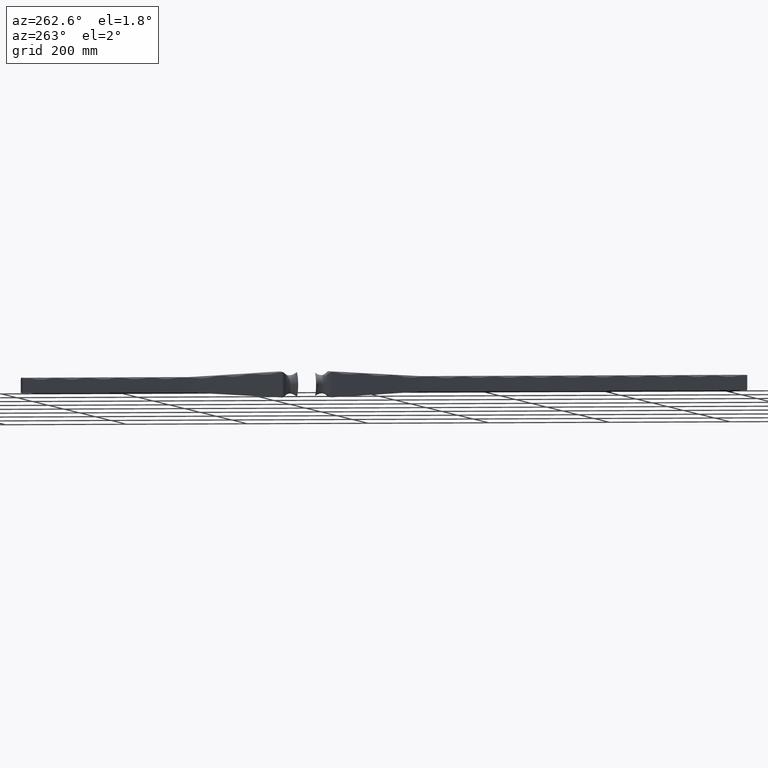
[diagram: clean part render]
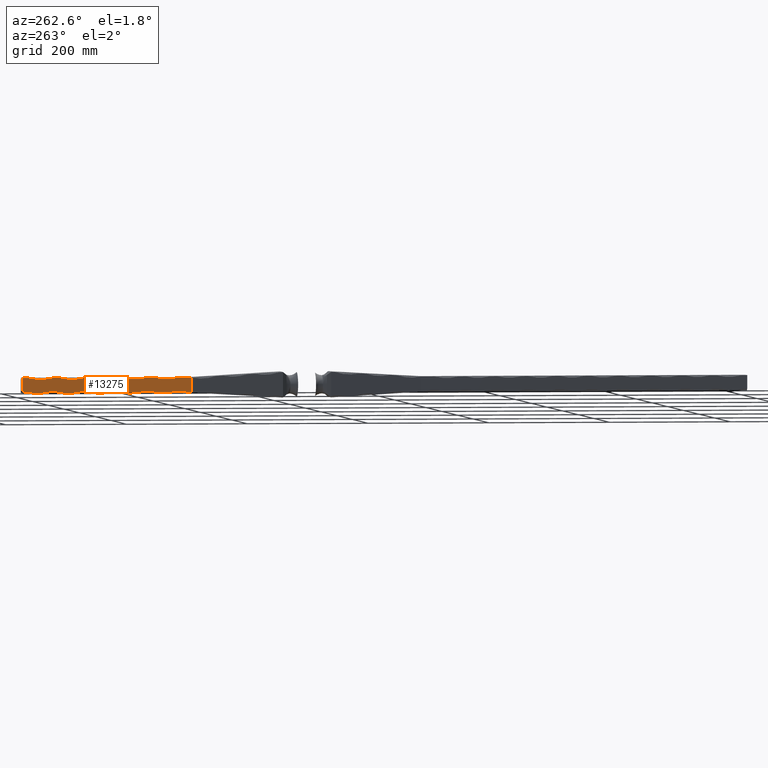
[diagram: same view with one face highlighted and labeled with its STEP entity id]
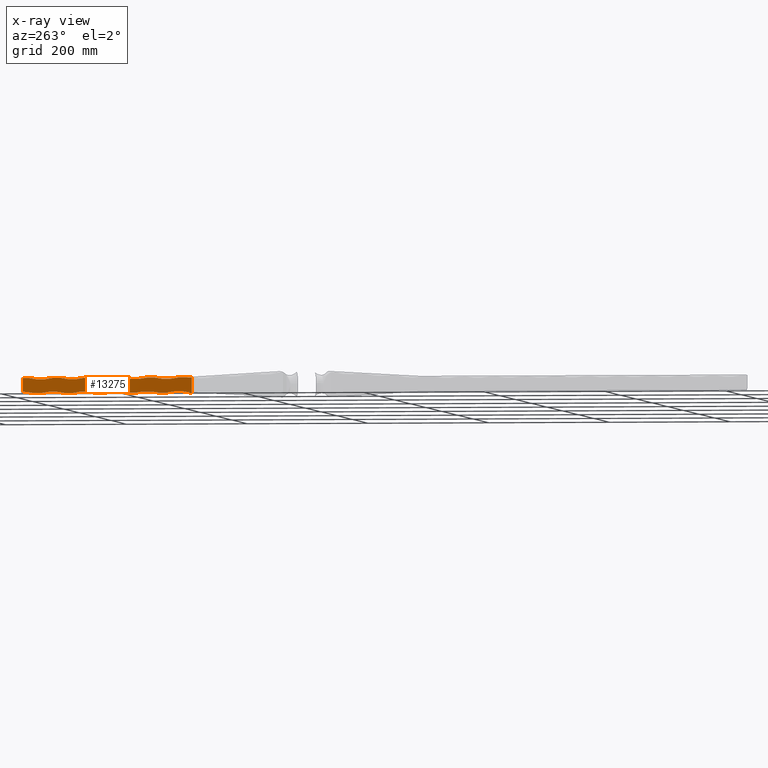
[diagram: x-ray of the same camera — body ghosted, the highlighted face saturated]
A machine part, auxiliary view. The second image highlights one B-rep face of the part: STEP entity #13275.
The next image is the same camera in x-ray: the body ghosted, the highlighted face saturated — about 0% of this face is hidden behind the body in this view.
In plain terms, the highlighted planar face has unit normal (1, 0, 0).
Its self-contained STEP definition (entity closure, byte-faithful):
#80 = FACE_OUTER_BOUND ( 'NONE', #10313, .T. ) ;
#135 = VERTEX_POINT ( 'NONE', #4320 ) ;
#160 = VECTOR ( 'NONE', #4542, 1000.000000000000000 ) ;
#176 = DIRECTION ( 'NONE',  ( 1.000000000000000000, 0.000000000000000000, 0.000000000000000000 ) ) ;
#219 = VECTOR ( 'NONE', #10010, 1000.000000000000000 ) ;
#274 = EDGE_CURVE ( 'NONE', #2638, #14939, #1200, .T. ) ;
#305 = DIRECTION ( 'NONE',  ( 1.000000000000000000, 0.000000000000000000, 0.000000000000000000 ) ) ;
#345 = DIRECTION ( 'NONE',  ( 0.000000000000000000, 0.000000000000000000, -1.000000000000000000 ) ) ;
#471 = VERTEX_POINT ( 'NONE', #15332 ) ;
#490 = VERTEX_POINT ( 'NONE', #1919 ) ;
#511 = CARTESIAN_POINT ( 'NONE',  ( -12.50000000000000000, 975.3553390593272070, -12.50000000000000000 ) ) ;
#532 = LINE ( 'NONE', #2171, #15808 ) ;
#538 = CARTESIAN_POINT ( 'NONE',  ( -12.50000000000000000, 190.0000000000000000, 12.50000000000000000 ) ) ;
#559 = AXIS2_PLACEMENT_3D ( 'NONE', #1388, #9831, #5030 ) ;
#607 = AXIS2_PLACEMENT_3D ( 'NONE', #8899, #176, #13803 ) ;
#659 = AXIS2_PLACEMENT_3D ( 'NONE', #14046, #9537, #4471 ) ;
#1067 = VERTEX_POINT ( 'NONE', #11756 ) ;
#1200 = LINE ( 'NONE', #14755, #219 ) ;
#1262 = ORIENTED_EDGE ( 'NONE', *, *, #10854, .F. ) ;
#1318 = VERTEX_POINT ( 'NONE', #13002 ) ;
#1354 = CIRCLE ( 'NONE', #659, 81.25000000000004263 ) ;
#1386 = VECTOR ( 'NONE', #14884, 1000.000000000000000 ) ;
#1388 = CARTESIAN_POINT ( 'NONE',  ( -12.49999999999991829, 439.9999999999999432, 91.24999999999990052 ) ) ;
#1514 = VECTOR ( 'NONE', #14029, 1000.000000000000000 ) ;
#1864 = DIRECTION ( 'NONE',  ( -1.000000000000000000, -0.000000000000000000, -0.000000000000000000 ) ) ;
#1917 = VERTEX_POINT ( 'NONE', #12023 ) ;
#1919 = CARTESIAN_POINT ( 'NONE',  ( -12.49999999999999289, 231.9999999999999716, -12.50000000000014033 ) ) ;
#1983 = CIRCLE ( 'NONE', #559, 81.24999999999998579 ) ;
#1985 = AXIS2_PLACEMENT_3D ( 'NONE', #9649, #7209, #7105 ) ;
#2092 = DIRECTION ( 'NONE',  ( -1.000000000000000000, -0.000000000000000000, -0.000000000000000000 ) ) ;
#2114 = ORIENTED_EDGE ( 'NONE', *, *, #9838, .T. ) ;
#2171 = CARTESIAN_POINT ( 'NONE',  ( -12.50000000000000000, 975.3553390593272070, 12.50000000000000000 ) ) ;
#2219 = EDGE_CURVE ( 'NONE', #10777, #6112, #14706, .T. ) ;
#2293 = CARTESIAN_POINT ( 'NONE',  ( -12.49999999999999289, 451.9999999999999432, -12.50000000000006750 ) ) ;
#2389 = CARTESIAN_POINT ( 'NONE',  ( -12.49999999999999289, 439.9999999999999432, -12.50000000000007994 ) ) ;
#2428 = VERTEX_POINT ( 'NONE', #13001 ) ;
#2483 = LINE ( 'NONE', #16012, #8666 ) ;
#2638 = VERTEX_POINT ( 'NONE', #3875 ) ;
#2718 = DIRECTION ( 'NONE',  ( 1.000000000000000000, 0.000000000000000000, 0.000000000000000000 ) ) ;
#2730 = EDGE_CURVE ( 'NONE', #1318, #490, #8149, .T. ) ;
#2756 = DIRECTION ( 'NONE',  ( -0.000000000000000000, -1.000000000000000000, -0.000000000000000000 ) ) ;
#2852 = VERTEX_POINT ( 'NONE', #5341 ) ;
#2872 = ORIENTED_EDGE ( 'NONE', *, *, #15866, .T. ) ;
#3002 = ORIENTED_EDGE ( 'NONE', *, *, #13475, .T. ) ;
#3090 = DIRECTION ( 'NONE',  ( 0.000000000000000000, 0.000000000000000000, -1.000000000000000000 ) ) ;
#3154 = AXIS2_PLACEMENT_3D ( 'NONE', #6868, #10545, #11614 ) ;
#3514 = LINE ( 'NONE', #11449, #4080 ) ;
#3531 = DIRECTION ( 'NONE',  ( -0.000000000000000000, -1.000000000000000000, -0.000000000000000000 ) ) ;
#3751 = VERTEX_POINT ( 'NONE', #9782 ) ;
#3856 = LINE ( 'NONE', #6268, #9291 ) ;
#3875 = CARTESIAN_POINT ( 'NONE',  ( -12.49999999999999645, 368.0000000000002842, 12.49999999999991651 ) ) ;
#3898 = DIRECTION ( 'NONE',  ( -0.000000000000000000, -1.000000000000000000, -0.000000000000000000 ) ) ;
#4080 = VECTOR ( 'NONE', #3898, 1000.000000000000000 ) ;
#4163 = VECTOR ( 'NONE', #7788, 1000.000000000000000 ) ;
#4280 = VECTOR ( 'NONE', #15256, 1000.000000000000000 ) ;
#4320 = CARTESIAN_POINT ( 'NONE',  ( -12.49999999999999289, 347.9999999999995453, -12.49999999999999645 ) ) ;
#4398 = VECTOR ( 'NONE', #6594, 1000.000000000000000 ) ;
#4430 = AXIS2_PLACEMENT_3D ( 'NONE', #11426, #12511, #345 ) ;
#4471 = DIRECTION ( 'NONE',  ( 0.000000000000000000, 0.000000000000000000, -1.000000000000000000 ) ) ;
#4474 = LINE ( 'NONE', #14118, #160 ) ;
#4526 = ORIENTED_EDGE ( 'NONE', *, *, #8456, .T. ) ;
#4542 = DIRECTION ( 'NONE',  ( -0.000000000000000000, -1.000000000000000000, -0.000000000000000000 ) ) ;
#4722 = CIRCLE ( 'NONE', #3154, 81.24999999999998579 ) ;
#4760 = VERTEX_POINT ( 'NONE', #12324 ) ;
#4791 = LINE ( 'NONE', #538, #4398 ) ;
#4985 = CARTESIAN_POINT ( 'NONE',  ( -12.50000000000000000, 975.3553390593272070, -12.50000000000000000 ) ) ;
#5030 = DIRECTION ( 'NONE',  ( 0.000000000000000000, -1.093142670400154351E-14, -1.000000000000000000 ) ) ;
#5259 = CARTESIAN_POINT ( 'NONE',  ( -12.49999999999999289, 211.9999999999999716, -91.25000000000019895 ) ) ;
#5268 = ORIENTED_EDGE ( 'NONE', *, *, #7612, .T. ) ;
#5283 = EDGE_CURVE ( 'NONE', #7403, #11681, #12614, .T. ) ;
#5288 = ORIENTED_EDGE ( 'NONE', *, *, #2219, .F. ) ;
#5327 = AXIS2_PLACEMENT_3D ( 'NONE', #15627, #2092, #6948 ) ;
#5341 = CARTESIAN_POINT ( 'NONE',  ( -12.49999999999999289, 295.9999999999994884, -12.49999999999999645 ) ) ;
#5368 = ORIENTED_EDGE ( 'NONE', *, *, #274, .F. ) ;
#5517 = DIRECTION ( 'NONE',  ( 0.000000000000000000, 0.000000000000000000, -1.000000000000000000 ) ) ;
#5843 = CIRCLE ( 'NONE', #4430, 81.25000000000005684 ) ;
#5968 = EDGE_CURVE ( 'NONE', #14939, #6624, #6811, .T. ) ;
#6017 = CARTESIAN_POINT ( 'NONE',  ( -12.50000000000000000, 190.0000000000000000, -12.50000000000000000 ) ) ;
#6112 = VERTEX_POINT ( 'NONE', #8459 ) ;
#6268 = CARTESIAN_POINT ( 'NONE',  ( -12.50000000000000000, 975.3553390593272070, -12.50000000000000000 ) ) ;
#6338 = EDGE_CURVE ( 'NONE', #3751, #2638, #4722, .T. ) ;
#6361 = LINE ( 'NONE', #10938, #7536 ) ;
#6431 = ORIENTED_EDGE ( 'NONE', *, *, #5283, .T. ) ;
#6594 = DIRECTION ( 'NONE',  ( 0.000000000000000000, 0.000000000000000000, -1.000000000000000000 ) ) ;
#6624 = VERTEX_POINT ( 'NONE', #9970 ) ;
#6811 = CIRCLE ( 'NONE', #5327, 81.24999999999998579 ) ;
#6868 = CARTESIAN_POINT ( 'NONE',  ( -12.49999999999990408, 387.9999999999999432, 91.24999999999988631 ) ) ;
#6913 = CARTESIAN_POINT ( 'NONE',  ( -12.49999999999999289, 387.9999999999999432, -12.50000000000009592 ) ) ;
#6948 = DIRECTION ( 'NONE',  ( 0.000000000000000000, 0.000000000000000000, -1.000000000000000000 ) ) ;
#7105 = DIRECTION ( 'NONE',  ( 0.000000000000000000, 0.000000000000000000, -1.000000000000000000 ) ) ;
#7153 = EDGE_CURVE ( 'NONE', #6624, #13024, #3514, .T. ) ;
#7174 = EDGE_CURVE ( 'NONE', #490, #7900, #14705, .T. ) ;
#7209 = DIRECTION ( 'NONE',  ( 1.000000000000000000, 0.000000000000000000, 0.000000000000000000 ) ) ;
#7263 = EDGE_CURVE ( 'NONE', #1917, #2852, #1354, .T. ) ;
#7403 = VERTEX_POINT ( 'NONE', #2293 ) ;
#7432 = LINE ( 'NONE', #4985, #4163 ) ;
#7500 = DIRECTION ( 'NONE',  ( -0.000000000000000000, -1.000000000000000000, -0.000000000000000000 ) ) ;
#7533 = CARTESIAN_POINT ( 'NONE',  ( -12.49999999999999289, 263.9999999999999432, -91.25000000000018474 ) ) ;
#7536 = VECTOR ( 'NONE', #3531, 1000.000000000000000 ) ;
#7580 = EDGE_CURVE ( 'NONE', #9567, #10777, #11825, .T. ) ;
#7589 = EDGE_CURVE ( 'NONE', #8495, #9684, #1983, .T. ) ;
#7612 = EDGE_CURVE ( 'NONE', #8010, #135, #5843, .T. ) ;
#7763 = CARTESIAN_POINT ( 'NONE',  ( -12.49999999999999645, 264.0000000000003979, 12.49999999999988631 ) ) ;
#7788 = DIRECTION ( 'NONE',  ( -0.000000000000000000, -1.000000000000000000, -0.000000000000000000 ) ) ;
#7816 = ORIENTED_EDGE ( 'NONE', *, *, #11841, .F. ) ;
#7900 = VERTEX_POINT ( 'NONE', #11714 ) ;
#8010 = VERTEX_POINT ( 'NONE', #6913 ) ;
#8070 = CARTESIAN_POINT ( 'NONE',  ( -12.49999999999987388, 284.0000000000000000, 91.24999999999985789 ) ) ;
#8109 = ORIENTED_EDGE ( 'NONE', *, *, #13982, .T. ) ;
#8149 = LINE ( 'NONE', #511, #4280 ) ;
#8250 = CARTESIAN_POINT ( 'NONE',  ( -12.49999999999992184, 459.9999999999999432, 12.49999999999993072 ) ) ;
#8354 = AXIS2_PLACEMENT_3D ( 'NONE', #5259, #305, #8766 ) ;
#8357 = EDGE_CURVE ( 'NONE', #471, #8495, #4474, .T. ) ;
#8456 = EDGE_CURVE ( 'NONE', #7900, #15634, #6361, .T. ) ;
#8459 = CARTESIAN_POINT ( 'NONE',  ( -12.49999999999999645, 212.0000000000004547, 12.49999999999987033 ) ) ;
#8495 = VERTEX_POINT ( 'NONE', #8250 ) ;
#8531 = VECTOR ( 'NONE', #7500, 1000.000000000000000 ) ;
#8628 = DIRECTION ( 'NONE',  ( 0.000000000000000000, 0.000000000000000000, 1.000000000000000000 ) ) ;
#8666 = VECTOR ( 'NONE', #8628, 1000.000000000000000 ) ;
#8694 = EDGE_CURVE ( 'NONE', #2852, #14902, #3856, .T. ) ;
#8766 = DIRECTION ( 'NONE',  ( 0.000000000000000000, 0.000000000000000000, -1.000000000000000000 ) ) ;
#8899 = CARTESIAN_POINT ( 'NONE',  ( -12.49999999999999289, 472.0000000000000000, -91.25000000000012790 ) ) ;
#9167 = ORIENTED_EDGE ( 'NONE', *, *, #12668, .F. ) ;
#9190 = CIRCLE ( 'NONE', #607, 81.25000000000005684 ) ;
#9273 = LINE ( 'NONE', #10423, #1514 ) ;
#9291 = VECTOR ( 'NONE', #2756, 1000.000000000000000 ) ;
#9363 = ORIENTED_EDGE ( 'NONE', *, *, #8694, .T. ) ;
#9496 = ORIENTED_EDGE ( 'NONE', *, *, #13669, .F. ) ;
#9537 = DIRECTION ( 'NONE',  ( 1.000000000000000000, 0.000000000000000000, 0.000000000000000000 ) ) ;
#9567 = VERTEX_POINT ( 'NONE', #7763 ) ;
#9649 = CARTESIAN_POINT ( 'NONE',  ( -12.49999999999999289, 419.9999999999999432, -91.25000000000014211 ) ) ;
#9684 = VERTEX_POINT ( 'NONE', #14456 ) ;
#9782 = CARTESIAN_POINT ( 'NONE',  ( -12.49999999999990763, 408.0000000000000000, 12.49999999999991651 ) ) ;
#9831 = DIRECTION ( 'NONE',  ( -1.000000000000000000, -0.000000000000000000, -0.000000000000000000 ) ) ;
#9838 = EDGE_CURVE ( 'NONE', #14902, #1318, #10997, .T. ) ;
#9970 = CARTESIAN_POINT ( 'NONE',  ( -12.49999999999999645, 316.0000000000003411, 12.49999999999990052 ) ) ;
#10010 = DIRECTION ( 'NONE',  ( -0.000000000000000000, -1.000000000000000000, -0.000000000000000000 ) ) ;
#10091 = AXIS2_PLACEMENT_3D ( 'NONE', #12900, #10352, #5517 ) ;
#10222 = ORIENTED_EDGE ( 'NONE', *, *, #10712, .F. ) ;
#10313 = EDGE_LOOP ( 'NONE', ( #15951, #14290, #4526, #9167, #1262, #5288, #14374, #9496, #11945, #12061, #5368, #13774, #7816, #12488, #14953, #10222, #8109, #6431, #13611, #3002, #5268, #2872, #14294, #9363, #2114 ) ) ;
#10352 = DIRECTION ( 'NONE',  ( -1.000000000000000000, -0.000000000000000000, -0.000000000000000000 ) ) ;
#10423 = CARTESIAN_POINT ( 'NONE',  ( -12.50000000000000000, 975.3553390593272070, -12.50000000000000000 ) ) ;
#10545 = DIRECTION ( 'NONE',  ( -1.000000000000000000, -0.000000000000000000, -0.000000000000000000 ) ) ;
#10661 = AXIS2_PLACEMENT_3D ( 'NONE', #8070, #1864, #3090 ) ;
#10712 = EDGE_CURVE ( 'NONE', #4760, #471, #2483, .T. ) ;
#10777 = VERTEX_POINT ( 'NONE', #12564 ) ;
#10782 = PLANE ( 'NONE',  #13942 ) ;
#10801 = DIRECTION ( 'NONE',  ( -0.000000000000000000, -1.000000000000000000, -0.000000000000000000 ) ) ;
#10854 = EDGE_CURVE ( 'NONE', #6112, #1067, #532, .T. ) ;
#10938 = CARTESIAN_POINT ( 'NONE',  ( -12.50000000000000000, 975.3553390593272070, -12.50000000000000000 ) ) ;
#10981 = CARTESIAN_POINT ( 'NONE',  ( -12.49999999999999289, 284.0000000000000000, -12.50000000000012612 ) ) ;
#10997 = CIRCLE ( 'NONE', #12082, 81.25000000000005684 ) ;
#11426 = CARTESIAN_POINT ( 'NONE',  ( -12.49999999999999289, 367.9999999999999432, -91.25000000000015632 ) ) ;
#11449 = CARTESIAN_POINT ( 'NONE',  ( -12.50000000000000000, 975.3553390593272070, 12.50000000000000000 ) ) ;
#11614 = DIRECTION ( 'NONE',  ( 0.000000000000000000, 0.000000000000000000, -1.000000000000000000 ) ) ;
#11681 = VERTEX_POINT ( 'NONE', #2389 ) ;
#11714 = CARTESIAN_POINT ( 'NONE',  ( -12.49999999999999289, 191.9999999999994031, -12.49999999999999645 ) ) ;
#11715 = CARTESIAN_POINT ( 'NONE',  ( -12.50000000000000000, 975.3553390593272070, 12.50000000000000000 ) ) ;
#11756 = CARTESIAN_POINT ( 'NONE',  ( -12.50000000000000000, 190.0000000000000000, 12.50000000000000000 ) ) ;
#11825 = LINE ( 'NONE', #16019, #8531 ) ;
#11841 = EDGE_CURVE ( 'NONE', #9684, #3751, #14999, .T. ) ;
#11908 = DIRECTION ( 'NONE',  ( 1.000000000000000000, 0.000000000000000000, 0.000000000000000000 ) ) ;
#11945 = ORIENTED_EDGE ( 'NONE', *, *, #7153, .F. ) ;
#12023 = CARTESIAN_POINT ( 'NONE',  ( -12.49999999999999289, 335.9999999999999432, -12.50000000000011191 ) ) ;
#12061 = ORIENTED_EDGE ( 'NONE', *, *, #5968, .F. ) ;
#12082 = AXIS2_PLACEMENT_3D ( 'NONE', #7533, #2718, #13778 ) ;
#12324 = CARTESIAN_POINT ( 'NONE',  ( -12.50000000000000000, 470.0000000000000000, -10.02461911446650333 ) ) ;
#12488 = ORIENTED_EDGE ( 'NONE', *, *, #7589, .F. ) ;
#12511 = DIRECTION ( 'NONE',  ( 1.000000000000000000, 0.000000000000000000, 0.000000000000000000 ) ) ;
#12564 = CARTESIAN_POINT ( 'NONE',  ( -12.49999999999986144, 252.0000000000000000, 12.49999999999987033 ) ) ;
#12614 = LINE ( 'NONE', #14826, #1386 ) ;
#12668 = EDGE_CURVE ( 'NONE', #1067, #15634, #4791, .T. ) ;
#12900 = CARTESIAN_POINT ( 'NONE',  ( -12.49999999999985789, 231.9999999999999716, 91.24999999999984368 ) ) ;
#12960 = DIRECTION ( 'NONE',  ( -0.000000000000000000, -1.000000000000000000, -0.000000000000000000 ) ) ;
#13001 = CARTESIAN_POINT ( 'NONE',  ( -12.49999999999999289, 399.9999999999996021, -12.49999999999999645 ) ) ;
#13002 = CARTESIAN_POINT ( 'NONE',  ( -12.49999999999999289, 243.9999999999994316, -12.49999999999999645 ) ) ;
#13024 = VERTEX_POINT ( 'NONE', #14754 ) ;
#13275 = ADVANCED_FACE ( 'NONE', ( #80 ), #10782, .F. ) ;
#13475 = EDGE_CURVE ( 'NONE', #2428, #8010, #7432, .T. ) ;
#13604 = CARTESIAN_POINT ( 'NONE',  ( -12.49999999999989164, 356.0000000000000000, 12.49999999999990052 ) ) ;
#13611 = ORIENTED_EDGE ( 'NONE', *, *, #14814, .T. ) ;
#13669 = EDGE_CURVE ( 'NONE', #13024, #9567, #14769, .T. ) ;
#13774 = ORIENTED_EDGE ( 'NONE', *, *, #6338, .F. ) ;
#13778 = DIRECTION ( 'NONE',  ( 0.000000000000000000, 0.000000000000000000, -1.000000000000000000 ) ) ;
#13803 = DIRECTION ( 'NONE',  ( 0.000000000000000000, 0.000000000000000000, -1.000000000000000000 ) ) ;
#13942 = AXIS2_PLACEMENT_3D ( 'NONE', #15567, #11908, #14386 ) ;
#13982 = EDGE_CURVE ( 'NONE', #4760, #7403, #9190, .T. ) ;
#14029 = DIRECTION ( 'NONE',  ( -0.000000000000000000, -1.000000000000000000, -0.000000000000000000 ) ) ;
#14046 = CARTESIAN_POINT ( 'NONE',  ( -12.49999999999999289, 315.9999999999999432, -91.25000000000017053 ) ) ;
#14118 = CARTESIAN_POINT ( 'NONE',  ( -12.50000000000000000, 975.3553390593272070, 12.50000000000000000 ) ) ;
#14290 = ORIENTED_EDGE ( 'NONE', *, *, #7174, .T. ) ;
#14294 = ORIENTED_EDGE ( 'NONE', *, *, #7263, .T. ) ;
#14374 = ORIENTED_EDGE ( 'NONE', *, *, #7580, .F. ) ;
#14386 = DIRECTION ( 'NONE',  ( 0.000000000000000000, 0.000000000000000000, -1.000000000000000000 ) ) ;
#14456 = CARTESIAN_POINT ( 'NONE',  ( -12.49999999999999645, 420.0000000000002274, 12.49999999999993072 ) ) ;
#14576 = CIRCLE ( 'NONE', #1985, 81.25000000000007105 ) ;
#14705 = CIRCLE ( 'NONE', #8354, 81.25000000000007105 ) ;
#14706 = CIRCLE ( 'NONE', #10091, 81.24999999999998579 ) ;
#14754 = CARTESIAN_POINT ( 'NONE',  ( -12.49999999999987743, 304.0000000000000000, 12.49999999999988631 ) ) ;
#14755 = CARTESIAN_POINT ( 'NONE',  ( -12.50000000000000000, 975.3553390593272070, 12.50000000000000000 ) ) ;
#14769 = CIRCLE ( 'NONE', #10661, 81.24999999999998579 ) ;
#14814 = EDGE_CURVE ( 'NONE', #11681, #2428, #14576, .T. ) ;
#14826 = CARTESIAN_POINT ( 'NONE',  ( -12.50000000000000000, 975.3553390593272070, -12.50000000000000000 ) ) ;
#14884 = DIRECTION ( 'NONE',  ( -0.000000000000000000, -1.000000000000000000, -0.000000000000000000 ) ) ;
#14902 = VERTEX_POINT ( 'NONE', #10981 ) ;
#14939 = VERTEX_POINT ( 'NONE', #13604 ) ;
#14953 = ORIENTED_EDGE ( 'NONE', *, *, #8357, .F. ) ;
#14999 = LINE ( 'NONE', #11715, #15963 ) ;
#15256 = DIRECTION ( 'NONE',  ( -0.000000000000000000, -1.000000000000000000, -0.000000000000000000 ) ) ;
#15332 = CARTESIAN_POINT ( 'NONE',  ( -12.50000000000000000, 470.0000000000000000, 12.50000000000000000 ) ) ;
#15567 = CARTESIAN_POINT ( 'NONE',  ( -12.50000000000000000, 975.3553390593272070, -12.50000000000000000 ) ) ;
#15627 = CARTESIAN_POINT ( 'NONE',  ( -12.49999999999988809, 335.9999999999999432, 91.24999999999987210 ) ) ;
#15634 = VERTEX_POINT ( 'NONE', #6017 ) ;
#15808 = VECTOR ( 'NONE', #10801, 1000.000000000000000 ) ;
#15866 = EDGE_CURVE ( 'NONE', #135, #1917, #9273, .T. ) ;
#15951 = ORIENTED_EDGE ( 'NONE', *, *, #2730, .T. ) ;
#15963 = VECTOR ( 'NONE', #12960, 1000.000000000000000 ) ;
#16012 = CARTESIAN_POINT ( 'NONE',  ( -12.50000000000000000, 470.0000000000000000, -12.50000000000000000 ) ) ;
#16019 = CARTESIAN_POINT ( 'NONE',  ( -12.50000000000000000, 975.3553390593272070, 12.50000000000000000 ) ) ;